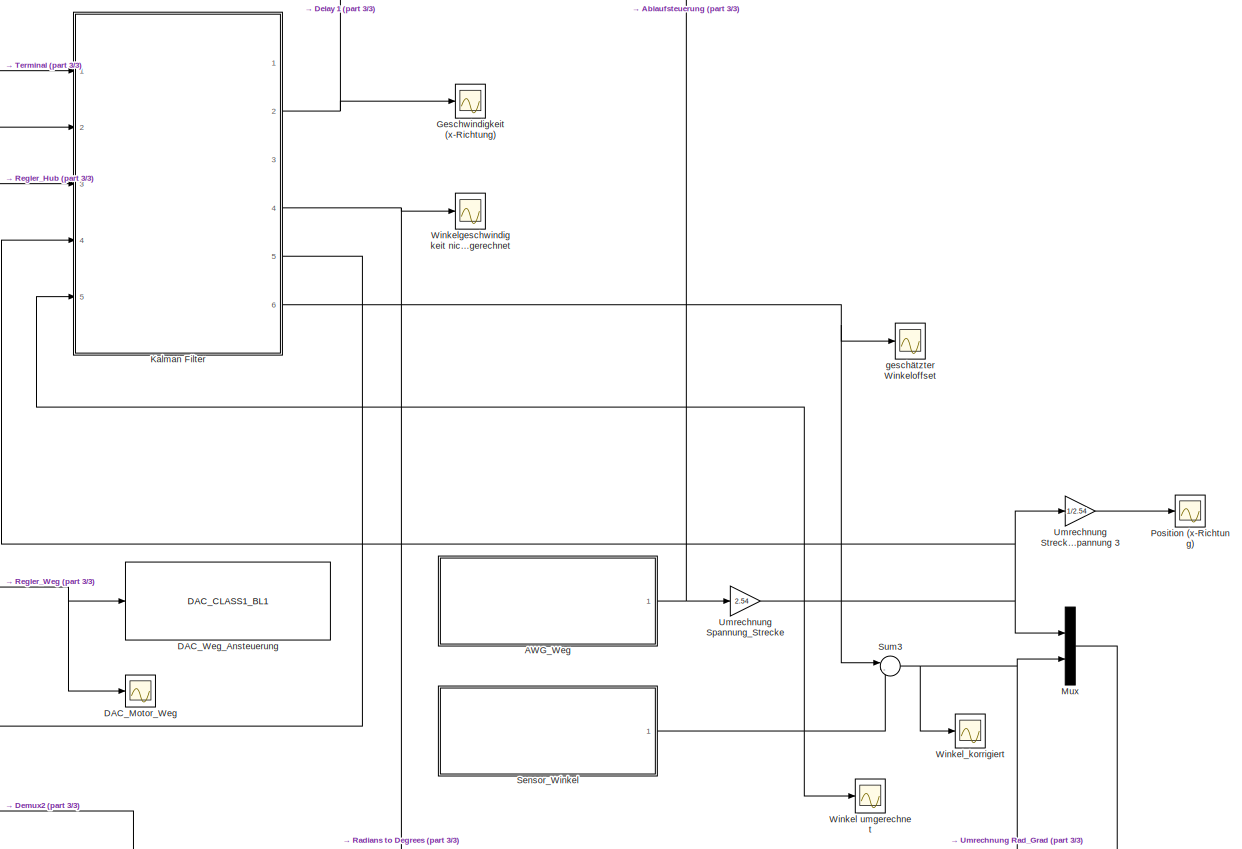
[diagram: root canvas - part 1/3, middle right region]
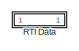
[diagram: root canvas - part 2/3, top left region]
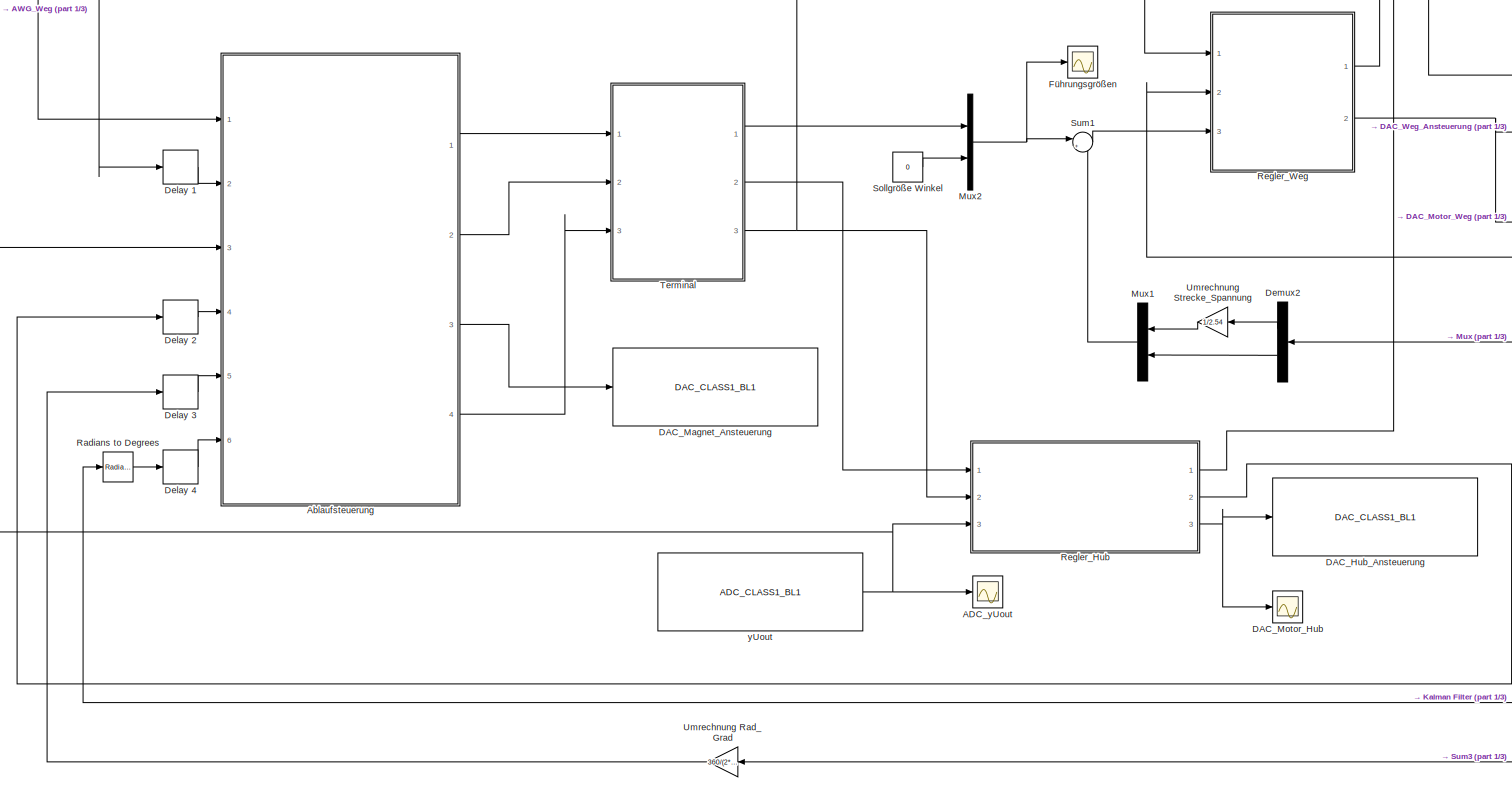
[diagram: root canvas - part 3/3, bottom left region]
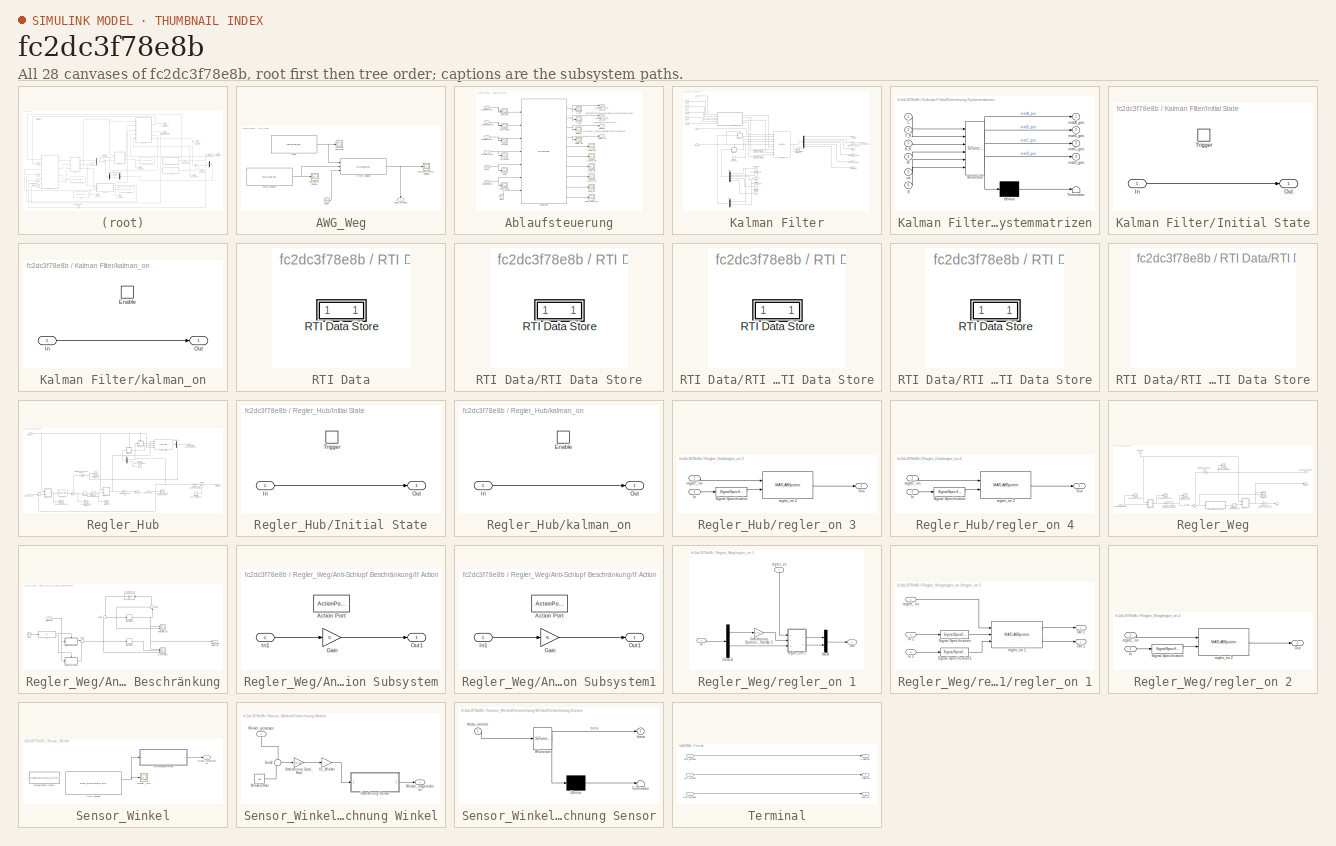
[diagram: thumbnail index - all 28 canvases of the model, root first then tree order]
MODEL slx_fc2dc3f78e8b
KIND model
CONFIG AbsTol = auto
CONFIG EnableMultiTasking = off
CONFIG FixedStep = 0.001
CONFIG MaxStep = auto
CONFIG MinStep = auto
CONFIG PostLoadFcn = , if any(exist('dsrtsu_mdlpostloadfcn', 'file') == [2, 3, 6]), try dsrtsu_mdlpostloadfcn('Execute', bdroot); catch fprintf('Error in PostLoadFcn (dsrtsu_mdlpostloadfcn) for model "%s":\n %s\n', bdroot, lasterr); end, end, \n
CONFIG RelTol = 1e-3
CONFIG SampleTimeConstraint = Unconstrained
CONFIG Solver = ode1
CONFIG SolverName = ode1
CONFIG StartTime = 0.0
CONFIG StopTime = Inf
BLOCK [Scope] ADC_yUout
  NumInputPorts = 1
  Ports = [1]
  ScopeSpecificationString = C++SS(StrPVP('SaveName','ScopeData5'),StrPVP('LimitDataPoints','on'),StrPVP('DataFormat','Array'),StrPVP('Decimation','1'),StrPVP('BlockParamSampleInput','off'),StrPVP('SaveName','ScopeData6'),StrPVP('SaveName','ScopeData20'))
BLOCK [SubSystem] AWG_Weg
  Ports = [0, 1]
  RequestExecContextInheritance = off
  Variant = off
BLOCK [Scope] AWG_Weg/ADC_Taster_Schiene
  NumInputPorts = 1
  Ports = [1]
  ScopeSpecificationString = C++SS(StrPVP('SaveName','ScopeData'),StrPVP('SaveName','ScopeData2'),StrPVP('LimitDataPoints','on'),StrPVP('DataFormat','Array'),StrPVP('Decimation','1'),StrPVP('BlockParamSampleInput','off'),StrPVP('SaveName','ScopeData1'),StrPVP('SaveName','ScopeData10'))
BLOCK [Scope] AWG_Weg/ADC_xUout
  NumInputPorts = 1
  Ports = [1]
  ScopeSpecificationString = C++SS(StrPVP('SaveName','ScopeData4'),StrPVP('LimitDataPoints','on'),StrPVP('DataFormat','Array'),StrPVP('Decimation','1'),StrPVP('BlockParamSampleInput','off'),StrPVP('SaveName','ScopeData1'))
BLOCK [Scope] AWG_Weg/ADC_xUout_offset_abgleich
  NumInputPorts = 1
  Ports = [1]
  ScopeSpecificationString = C++SS(StrPVP('SaveName','ScopeData4'),StrPVP('LimitDataPoints','on'),StrPVP('DataFormat','Array'),StrPVP('Decimation','1'),StrPVP('BlockParamSampleInput','off'),StrPVP('SaveName','ScopeData1'),StrPVP('SaveName','ScopeData17'))
BLOCK [Clock] AWG_Weg/Clock
BLOCK [MATLABSystem] AWG_Weg/Offset Abgleich
  MaskDisplay = disp('offset_abgleich');\nport_label('input',1,'input');\nport_label('input',2,'taster');\nport_label('input',3,'clock');\nport_label('output',1,'output');
  MaskType = offset_abgleich
  Ports = [3, 1]
  SimulateUsing = Code generation
  System = offset_abgleich
BLOCK [Reference] AWG_Weg/Taster_Schiene  REF=rti1202lib_adc_class1/ADC_CLASS1_BL1
  Ports = [0, 1]
  SourceBlock = rti1202lib_adc_class1/ADC_CLASS1_BL1
  SourceType = RTI
BLOCK [Reference] AWG_Weg/xUout  REF=rti1202lib_adc_class1/ADC_CLASS1_BL1
  Ports = [0, 1]
  SourceBlock = rti1202lib_adc_class1/ADC_CLASS1_BL1
  SourceType = RTI
BLOCK [Outport] AWG_Weg/xUout_korrigiert
  IconDisplay = Port number
BLOCK [SubSystem] Ablaufsteuerung
  Ports = [6, 4]
  RequestExecContextInheritance = off
  Variant = off
BLOCK [MATLABSystem] Ablaufsteuerung/AutClassDef
  MaskDisplay = disp('Steuerung_Automatisierung');\nport_label('input',1,'horiz_pos');\nport_label('input',2,'horiz_speed');\nport_label('input',3,'vert_pos');\nport_label('input',4,'vert_speed');\nport_label('input',5,'angle');\nport_label('input',6,'angle_speed');\nport_label('input',7,'Clock');\nport_label('output',1,'horiz_setpoint');\nport_label('output',2,'vert_setpoint');\nport_label('output',3,'magnet_on');\nport_la...<+300ch>
  MaskType = Steuerung_Automatisierung
  Ports = [7, 10]
  SimulateUsing = Code generation
  System = Steuerung_Automatisierung
  add_midpoints = true
  midpoint_height = -1
  param = param
  start_time = 30
BLOCK [Clock] Ablaufsteuerung/Clock
BLOCK [Inport] Ablaufsteuerung/Hubmotor AWG
  IconDisplay = Port number
  OutDataTypeStr = double
  OutMax = 1
  OutMin = 0
  Port = 3
  PortDimensions = 1
  SignalType = real
BLOCK [Inport] Ablaufsteuerung/Hubmotor Speed
  IconDisplay = Port number
  OutDataTypeStr = double
  Port = 4
  SignalType = real
BLOCK [Outport] Ablaufsteuerung/Hubmotor_AWG_ADC_Soll
  IconDisplay = Port number
  Port = 2
BLOCK [Inport] Ablaufsteuerung/Laufkatze AWG
  IconDisplay = Port number
  OutDataTypeStr = double
  OutMax = 1
  OutMin = 0
  PortDimensions = 1
  SignalType = real
BLOCK [Inport] Ablaufsteuerung/Laufkatze Speed
  IconDisplay = Port number
  OutDataTypeStr = double
  Port = 2
  SignalType = real
BLOCK [Outport] Ablaufsteuerung/Laufkatze_AWG_ADC_Soll
  IconDisplay = Port number
BLOCK [Outport] Ablaufsteuerung/Magnet
  IconDisplay = Port number
  Port = 3
BLOCK [Outport] Ablaufsteuerung/Regler_An
  IconDisplay = Port number
  Port = 4
BLOCK [Inport] Ablaufsteuerung/Winkel
  IconDisplay = Port number
  OutDataTypeStr = double
  OutMax = 360
  OutMin = 0
  Port = 5
  PortDimensions = 1
  SignalType = real
BLOCK [Inport] Ablaufsteuerung/Winkel  Speed
  IconDisplay = Port number
  OutDataTypeStr = double
  Port = 6
  SignalType = real
BLOCK [Scope] Ablaufsteuerung/angle
  NumInputPorts = 1
  Ports = [1]
  ScopeSpecificationString = C++SS(StrPVP('SaveName','ScopeData1'),StrPVP('LimitDataPoints','on'),StrPVP('DataFormat','Array'),StrPVP('Decimation','1'),StrPVP('BlockParamSampleInput','off'))
BLOCK [Scope] Ablaufsteuerung/angle_OK
  NumInputPorts = 1
  Ports = [1]
  ScopeSpecificationString = C++SS(StrPVP('SaveName','ScopeData2'),StrPVP('LimitDataPoints','on'),StrPVP('DataFormat','Array'),StrPVP('Decimation','1'),StrPVP('BlockParamSampleInput','off'))
BLOCK [Scope] Ablaufsteuerung/angle_speed
  NumInputPorts = 1
  Ports = [1]
  ScopeSpecificationString = C++SS(StrPVP('SaveName','ScopeData3'),StrPVP('LimitDataPoints','on'),StrPVP('DataFormat','Array'),StrPVP('Decimation','1'),StrPVP('BlockParamSampleInput','off'))
BLOCK [Scope] Ablaufsteuerung/angle_speed_OK
  NumInputPorts = 1
  Ports = [1]
  ScopeSpecificationString = C++SS(StrPVP('SaveName','ScopeData9'),StrPVP('LimitDataPoints','on'),StrPVP('DataFormat','Array'),StrPVP('Decimation','1'),StrPVP('BlockParamSampleInput','off'),StrPVP('SaveName','ScopeData4'))
BLOCK [Scope] Ablaufsteuerung/horiz_pos
  NumInputPorts = 1
  Ports = [1]
  ScopeSpecificationString = C++SS(StrPVP('SaveName','ScopeData5'),StrPVP('LimitDataPoints','on'),StrPVP('DataFormat','Array'),StrPVP('Decimation','1'),StrPVP('BlockParamSampleInput','off'))
BLOCK [Scope] Ablaufsteuerung/horiz_speed
  NumInputPorts = 1
  Ports = [1]
  ScopeSpecificationString = C++SS(StrPVP('SaveName','ScopeData6'),StrPVP('LimitDataPoints','on'),StrPVP('DataFormat','Array'),StrPVP('Decimation','1'),StrPVP('BlockParamSampleInput','off'))
BLOCK [Scope] Ablaufsteuerung/magnet
  NumInputPorts = 1
  Ports = [1]
  ScopeSpecificationString = C++SS(StrPVP('SaveName','ScopeData7'),StrPVP('LimitDataPoints','on'),StrPVP('DataFormat','Array'),StrPVP('Decimation','1'),StrPVP('BlockParamSampleInput','off'))
BLOCK [Scope] Ablaufsteuerung/regler_an
  NumInputPorts = 1
  Ports = [1]
  ScopeSpecificationString = C++SS(StrPVP('SaveName','ScopeData8'),StrPVP('LimitDataPoints','on'),StrPVP('DataFormat','Array'),StrPVP('Decimation','1'),StrPVP('BlockParamSampleInput','off'))
BLOCK [Scope] Ablaufsteuerung/vert_pos
  NumInputPorts = 1
  Ports = [1]
  ScopeSpecificationString = C++SS(StrPVP('SaveName','ScopeData9'),StrPVP('LimitDataPoints','on'),StrPVP('DataFormat','Array'),StrPVP('Decimation','1'),StrPVP('BlockParamSampleInput','off'))
BLOCK [Scope] Ablaufsteuerung/vert_speed
  NumInputPorts = 1
  Ports = [1]
  ScopeSpecificationString = C++SS(StrPVP('SaveName','ScopeData10'),StrPVP('LimitDataPoints','on'),StrPVP('DataFormat','Array'),StrPVP('Decimation','1'),StrPVP('BlockParamSampleInput','off'))
BLOCK [Scope] Ablaufsteuerung/x_pos_OK
  NumInputPorts = 1
  Ports = [1]
  ScopeSpecificationString = C++SS(StrPVP('SaveName','ScopeData11'),StrPVP('LimitDataPoints','on'),StrPVP('DataFormat','Array'),StrPVP('Decimation','1'),StrPVP('BlockParamSampleInput','off'))
BLOCK [Scope] Ablaufsteuerung/x_soll
  NumInputPorts = 1
  Ports = [1]
  ScopeSpecificationString = C++SS(StrPVP('SaveName','ScopeData12'),StrPVP('LimitDataPoints','on'),StrPVP('DataFormat','Array'),StrPVP('Decimation','1'),StrPVP('BlockParamSampleInput','off'))
BLOCK [Scope] Ablaufsteuerung/x_speed_OK
  NumInputPorts = 1
  Ports = [1]
  ScopeSpecificationString = C++SS(StrPVP('SaveName','ScopeData13'),StrPVP('LimitDataPoints','on'),StrPVP('DataFormat','Array'),StrPVP('Decimation','1'),StrPVP('BlockParamSampleInput','off'))
BLOCK [Scope] Ablaufsteuerung/y_pos_OK
  NumInputPorts = 1
  Ports = [1]
  ScopeSpecificationString = C++SS(StrPVP('SaveName','ScopeData14'),StrPVP('LimitDataPoints','on'),StrPVP('DataFormat','Array'),StrPVP('Decimation','1'),StrPVP('BlockParamSampleInput','off'))
BLOCK [Scope] Ablaufsteuerung/y_soll
  NumInputPorts = 1
  Ports = [1]
  ScopeSpecificationString = C++SS(StrPVP('SaveName','ScopeData15'),StrPVP('LimitDataPoints','on'),StrPVP('DataFormat','Array'),StrPVP('Decimation','1'),StrPVP('BlockParamSampleInput','off'))
BLOCK [Scope] Ablaufsteuerung/y_speed_OK
  NumInputPorts = 1
  Ports = [1]
  ScopeSpecificationString = C++SS(StrPVP('SaveName','ScopeData16'),StrPVP('LimitDataPoints','on'),StrPVP('DataFormat','Array'),StrPVP('Decimation','1'),StrPVP('BlockParamSampleInput','off'))
BLOCK [Reference] DAC_Hub_Ansteuerung  REF=rti1202lib_dac_class1/DAC_CLASS1_BL1
  Ports = [1]
  SourceBlock = rti1202lib_dac_class1/DAC_CLASS1_BL1
  SourceType = RTI
BLOCK [Reference] DAC_Magnet_Ansteuerung  REF=rti1202lib_dac_class1/DAC_CLASS1_BL1
  Ports = [1]
  SourceBlock = rti1202lib_dac_class1/DAC_CLASS1_BL1
  SourceType = RTI
BLOCK [Scope] DAC_Motor_Hub
  NumInputPorts = 1
  Ports = [1]
  ScopeSpecificationString = C++SS(StrPVP('SaveName','ScopeData3'),StrPVP('LimitDataPoints','on'),StrPVP('DataFormat','Array'),StrPVP('Decimation','1'),StrPVP('BlockParamSampleInput','off'),StrPVP('SaveName','ScopeData23'))
BLOCK [Scope] DAC_Motor_Weg
  NumInputPorts = 1
  Ports = [1]
  ScopeSpecificationString = C++SS(StrPVP('SaveName','ScopeData3'),StrPVP('LimitDataPoints','on'),StrPVP('DataFormat','Array'),StrPVP('Decimation','1'),StrPVP('BlockParamSampleInput','off'),StrPVP('SaveName','ScopeData1'),StrPVP('SaveName','ScopeData8'))
BLOCK [Reference] DAC_Weg_Ansteuerung  REF=rti1202lib_dac_class1/DAC_CLASS1_BL1
  Ports = [1]
  SourceBlock = rti1202lib_dac_class1/DAC_CLASS1_BL1
  SourceType = RTI
BLOCK [Delay] Delay 1
  DelayLength = 1
  InitialCondition = 0
  InputPortMap = u0
  Ports = [1, 1]
BLOCK [Delay] Delay 2
  DelayLength = 1
  InitialCondition = 0
  InputPortMap = u0
  Ports = [1, 1]
BLOCK [Delay] Delay 3
  DelayLength = 1
  InitialCondition = 0
  InputPortMap = u0
  Ports = [1, 1]
BLOCK [Delay] Delay 4
  DelayLength = 1
  InitialCondition = 0
  InputPortMap = u0
  Ports = [1, 1]
BLOCK [Demux] Demux2
  DisplayOption = bar
  Outputs = 2
  Ports = [1, 2]
BLOCK [Scope] Führungsgrößen
  NumInputPorts = 1
  Ports = [1]
  ScopeSpecificationString = C++SS(StrPVP('SaveName','ScopeData2'),StrPVP('LimitDataPoints','on'),StrPVP('DataFormat','Array'),StrPVP('Decimation','1'),StrPVP('BlockParamSampleInput','off'),StrPVP('SaveName','ScopeData2'))
BLOCK [Scope] Geschwindigkeit (x-Richtung)
  NumInputPorts = 1
  Ports = [1]
  ScopeSpecificationString = C++SS(StrPVP('SaveName','ScopeData4'),StrPVP('LimitDataPoints','on'),StrPVP('DataFormat','Array'),StrPVP('Decimation','1'),StrPVP('BlockParamSampleInput','off'),StrPVP('SaveName','ScopeData4'))
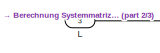
[diagram: Kalman Filter - part 1/3, top left region]
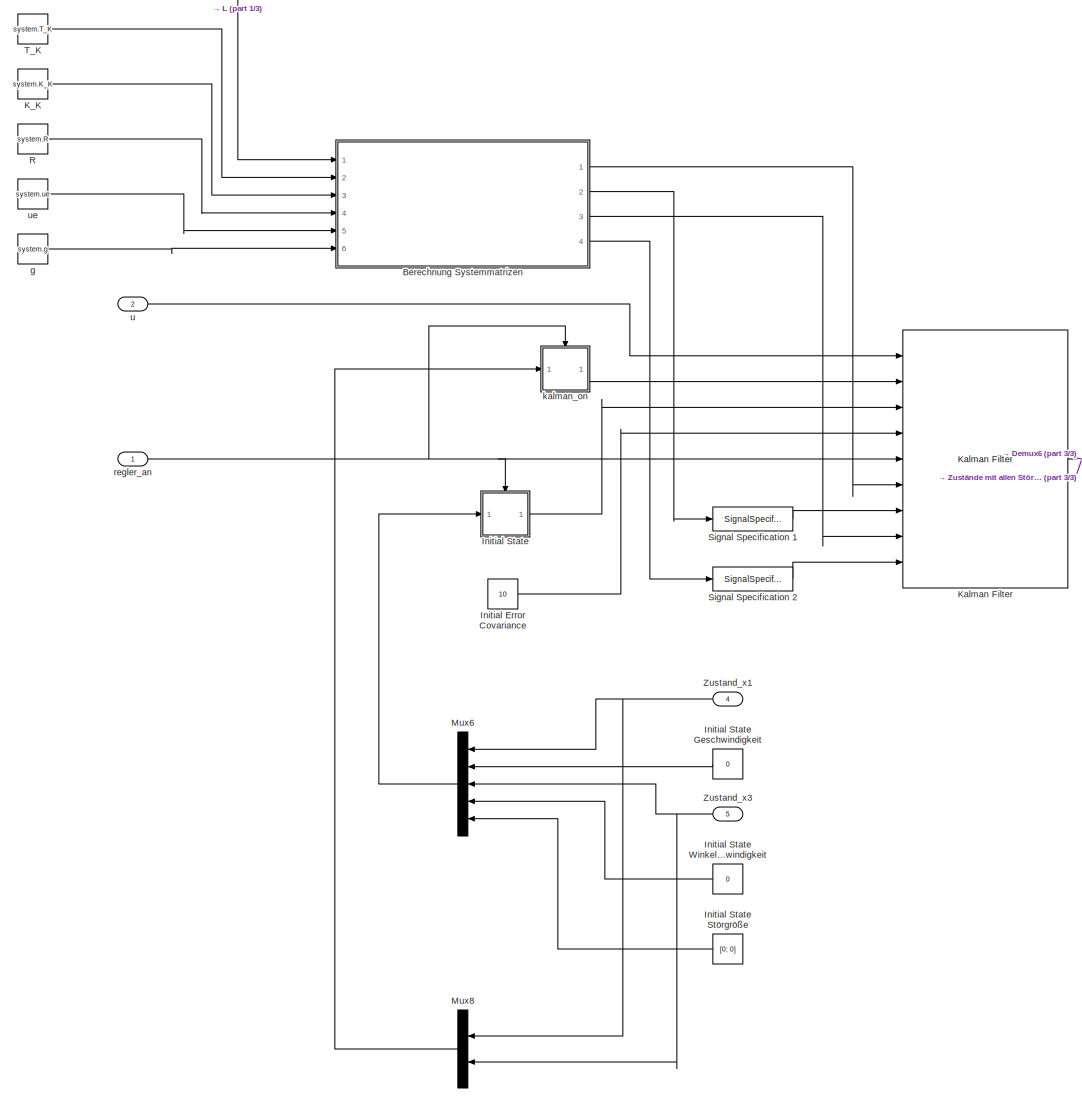
[diagram: Kalman Filter - part 2/3, left side, full height]
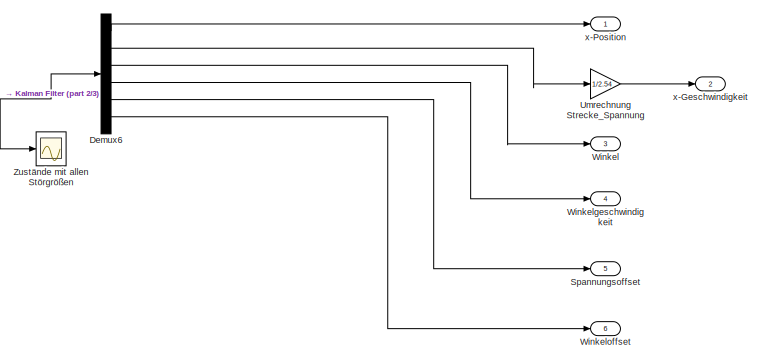
[diagram: Kalman Filter - part 3/3, middle right region]
BLOCK [SubSystem] Kalman Filter
  Ports = [5, 6]
  RequestExecContextInheritance = off
  Variant = off
BLOCK [SubSystem] Kalman Filter/Berechnung Systemmatrizen
  ErrorFcn = Stateflow.Translate.translate
  PermitHierarchicalResolution = ExplicitOnly
  Ports = [6, 4]
  RequestExecContextInheritance = off
  SFBlockType = MATLAB Function
  TreatAsAtomicUnit = on
  Variant = off
BLOCK [Demux] Kalman Filter/Berechnung Systemmatrizen/ Demux 
  Outputs = 1
  Ports = [1, 1]
BLOCK [S-Function] Kalman Filter/Berechnung Systemmatrizen/ SFunction 
  EnableBusSupport = on
  FunctionName = sf_sfun
  PortCounts = [6 5]
  Ports = [6, 5]
  SFcnIsStateOwnerBlock = off
  SFunctionDeploymentMode = off
  Tag = Stateflow S-Function gesamtkonzept_robuster_regler_polbvg 3
BLOCK [Terminator] Kalman Filter/Berechnung Systemmatrizen/ Terminator 
BLOCK [Inport] Kalman Filter/Berechnung Systemmatrizen/K_K
  IconDisplay = Port number
  Port = 3
BLOCK [Inport] Kalman Filter/Berechnung Systemmatrizen/L
  IconDisplay = Port number
BLOCK [Inport] Kalman Filter/Berechnung Systemmatrizen/R
  IconDisplay = Port number
  Port = 4
BLOCK [Inport] Kalman Filter/Berechnung Systemmatrizen/T_K
  IconDisplay = Port number
  Port = 2
BLOCK [Inport] Kalman Filter/Berechnung Systemmatrizen/g
  IconDisplay = Port number
  Port = 6
BLOCK [Outport] Kalman Filter/Berechnung Systemmatrizen/matA_ges
  IconDisplay = Port number
BLOCK [Outport] Kalman Filter/Berechnung Systemmatrizen/matB_ges
  IconDisplay = Port number
  Port = 2
BLOCK [Outport] Kalman Filter/Berechnung Systemmatrizen/matC_ges
  IconDisplay = Port number
  Port = 3
BLOCK [Outport] Kalman Filter/Berechnung Systemmatrizen/matD_ges
  IconDisplay = Port number
  Port = 4
BLOCK [Inport] Kalman Filter/Berechnung Systemmatrizen/ue
  IconDisplay = Port number
  Port = 5
BLOCK [Demux] Kalman Filter/Demux6
  DisplayOption = bar
  Outputs = 6
  Ports = [1, 6]
BLOCK [Constant] Kalman Filter/Initial Error Covariance
  SampleTime = -1
  Value = 10
BLOCK [SubSystem] Kalman Filter/Initial State
  Ports = [1, 1, 0, 1]
  RequestExecContextInheritance = off
  TreatAsAtomicUnit = on
  Variant = off
BLOCK [Constant] Kalman Filter/Initial State Geschwindigkeit
  Value = 0
  VectorParams1D = off
BLOCK [Constant] Kalman Filter/Initial State Störgröße
  Value = [0; 0]
  VectorParams1D = off
BLOCK [Constant] Kalman Filter/Initial State Winkelgeschwindigkeit
  Value = 0
  VectorParams1D = off
BLOCK [Inport] Kalman Filter/Initial State/In
  IconDisplay = Port number
BLOCK [Outport] Kalman Filter/Initial State/Out
  IconDisplay = Port number
BLOCK [TriggerPort] Kalman Filter/Initial State/Trigger
  Ports = []
  StatesWhenEnabling = held
  VariantControl = Variant
BLOCK [Constant] Kalman Filter/K_K
  Value = system.K_K
BLOCK [Reference] Kalman Filter/Kalman Filter  REF=ctrlSharedLib/Kalman Filter
  Ports = [9, 1]
  SourceBlock = ctrlSharedLib/Kalman Filter
  SourceType = ctrlKalmanFilter
BLOCK [Inport] Kalman Filter/L
  IconDisplay = Port number
  Port = 3
BLOCK [Mux] Kalman Filter/Mux6
  DisplayOption = bar
  Inputs = 5
  Ports = [5, 1]
BLOCK [Mux] Kalman Filter/Mux8
  DisplayOption = bar
  Inputs = 2
  Ports = [2, 1]
BLOCK [Constant] Kalman Filter/R
  Value = system.R
BLOCK [SignalSpecification] Kalman Filter/Signal Specification 1
  Dimensions = [6 1]
BLOCK [SignalSpecification] Kalman Filter/Signal Specification 2
  Dimensions = [2 1]
BLOCK [Outport] Kalman Filter/Spannungsoffset
  IconDisplay = Port number
  Port = 5
BLOCK [Constant] Kalman Filter/T_K
  Value = system.T_K
BLOCK [Gain] Kalman Filter/Umrechnung Strecke_Spannung
  Gain = 1/2.54
  OutDataTypeStr = Inherit: Inherit via internal rule
  ParamDataTypeStr = Inherit: Inherit via internal rule
  SaturateOnIntegerOverflow = off
BLOCK [Outport] Kalman Filter/Winkel
  IconDisplay = Port number
  Port = 3
BLOCK [Outport] Kalman Filter/Winkelgeschwindigkeit
  IconDisplay = Port number
  Port = 4
BLOCK [Outport] Kalman Filter/Winkeloffset
  IconDisplay = Port number
  Port = 6
BLOCK [Inport] Kalman Filter/Zustand_x1
  IconDisplay = Port number
  Port = 4
BLOCK [Inport] Kalman Filter/Zustand_x3
  IconDisplay = Port number
  Port = 5
BLOCK [Scope] Kalman Filter/Zustände mit allen Störgrößen
  NumInputPorts = 1
  Ports = [1]
  ScopeSpecificationString = Simulink.scopes.TimeScopeBlockCfg('CurrentConfiguration', extmgr.ConfigurationSet(extmgr.Configuration('Core','General UI',true),extmgr.Configuration('Core','Source UI',true),extmgr.Configuration('Sources','WiredSimulink',true,'DataLoggingVariableName','ScopeData1'),extmgr.Configuration('Visuals','Time Domain',true,'SerializedDisplays',{struct('MinYLimReal','-0.84313','MaxYLimReal','3.02828','YLab...<+1537ch>
BLOCK [Constant] Kalman Filter/g
  Value = system.g
BLOCK [SubSystem] Kalman Filter/kalman_on
  Ports = [1, 1, 1]
  RequestExecContextInheritance = off
  TreatAsAtomicUnit = on
  Variant = off
BLOCK [EnablePort] Kalman Filter/kalman_on/Enable
  Ports = []
BLOCK [Inport] Kalman Filter/kalman_on/In
  IconDisplay = Port number
BLOCK [Outport] Kalman Filter/kalman_on/Out
  IconDisplay = Port number
BLOCK [Inport] Kalman Filter/regler_an
  IconDisplay = Port number
BLOCK [Inport] Kalman Filter/u
  IconDisplay = Port number
  Port = 2
BLOCK [Constant] Kalman Filter/ue
  Value = system.ue
BLOCK [Outport] Kalman Filter/x-Geschwindigkeit
  IconDisplay = Port number
  Port = 2
BLOCK [Outport] Kalman Filter/x-Position
  IconDisplay = Port number
BLOCK [Mux] Mux
  DisplayOption = bar
  Inputs = 2
  Ports = [2, 1]
BLOCK [Mux] Mux1
  DisplayOption = bar
  Inputs = 2
  Ports = [2, 1]
BLOCK [Mux] Mux2
  DisplayOption = bar
  Inputs = 2
  Ports = [2, 1]
BLOCK [Scope] Position (x-Richtung)
  NumInputPorts = 1
  Ports = [1]
  ScopeSpecificationString = C++SS(StrPVP('SaveName','ScopeData5'),StrPVP('LimitDataPoints','on'),StrPVP('DataFormat','Array'),StrPVP('Decimation','1'),StrPVP('BlockParamSampleInput','off'),StrPVP('SaveName','ScopeData5'))
BLOCK [SubSystem] RTI Data
  CopyFcn = if exist('rtidc'), try,  rtidc('DataHostBlockClbCopy', gcbh); catch, disp(['Warning: ''CopyFcn'' for RTI Data block failed: ' lasterr]); end, end,
  DeleteFcn = if exist('rtidc'), try,  rtidc('DataHostBlockClbDelete', gcbh); catch, disp(['Warning: ''DeleteFcn'' for RTI Data block failed: ' lasterr]); end, end,
  LoadFcn = if exist('rtidc'), try,  rtidc('DataHostBlockClbLoad', gcbh); catch, disp(['Warning: ''LoadFcn'' for RTI Data block failed: ' lasterr]); end, end,
  ModelCloseFcn = if exist('rtidc'), try,  rtidc('DataHostBlockClbModelClose', gcbh); catch, disp(['Warning: ''ModelCloseFcn'' for RTI Data block failed: ' lasterr]); end, end,
  NameChangeFcn = if exist('rtidc'), try,  rtidc('DataHostBlockClbNameChange', gcbh); catch, disp(['Warning: ''NameChangeFcn'' for RTI Data block failed: ' lasterr]); end, end,
  Ports = []
  PostSaveFcn = if exist('rtidc'), try,  rtidc('DataHostBlockClbPostSave', gcbh); catch, disp(['Warning: ''PostSaveFcn'' for RTI Data block failed: ' lasterr]); end, end,
  PreSaveFcn = if exist('rtidc'), try,  rtidc('DataHostBlockClbPreSave', gcbh); catch, disp(['Warning: ''PreSaveFcn'' for RTI Data block failed: ' lasterr]); end, end,
  RequestExecContextInheritance = off
  Tag = struct('RTIDataServer',struct('RTIDataServerVs','2','RTIModelDescription','struct(''main'',''test_regler_polbvg_aktoren_sensoren_ansprechen'',''sub'','''',''isMp'',0)'))
  Variant = off
BLOCK [SubSystem] RTI Data/RTI Data Store
  Ports = []
  RequestExecContextInheritance = off
  Tag = struct('private',struct('version',struct('dsVer',uint32(2),'dsVerCreation',uint32(2),'RTI',struct('ver','7.7','type','RTI1202')),'access',struct('type','Model','isPerm',1,'created',['24-Nov-2020 10:16:32'],'modified',['09-Feb-2021 16:18:32'],'location','')),'public',struct('main',struct('data',[]),'sub',struct('name',{{'test_regler_polbvg_aktoren_sensoren_ansprechen'}},'data',{{struct('TH',struct(...<+923ch>
  Variant = off
BLOCK [SubSystem] RTI Data/RTI Data Store/RTI Data Store
  Ports = []
  RequestExecContextInheritance = off
  Variant = off
BLOCK [SubSystem] RTI Data/RTI Data Store/RTI Data Store/RTI Data Store
  Ports = []
  RequestExecContextInheritance = off
  Variant = off
BLOCK [SubSystem] RTI Data/RTI Data Store/RTI Data Store/RTI Data Store/RTI Data Store
  Ports = []
  RequestExecContextInheritance = off
  Variant = off
BLOCK [Reference] Radians to Degrees  REF=simulink_extras/Transformations/Radians
to Degrees
  Ports = [1, 1]
  SourceBlock = simulink_extras/Transformations/Radians\nto Degrees
  SourceType = RadiansToDegrees
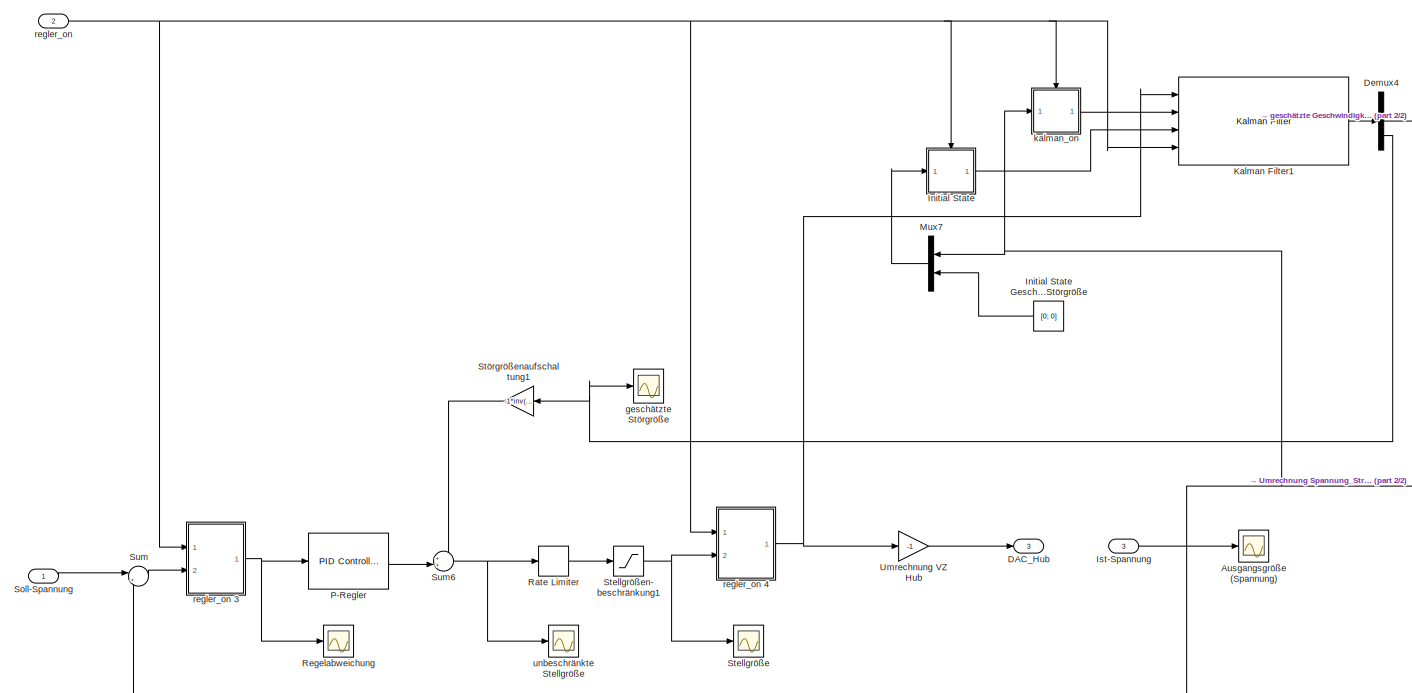
[diagram: Regler_Hub - part 1/2, most of the canvas]
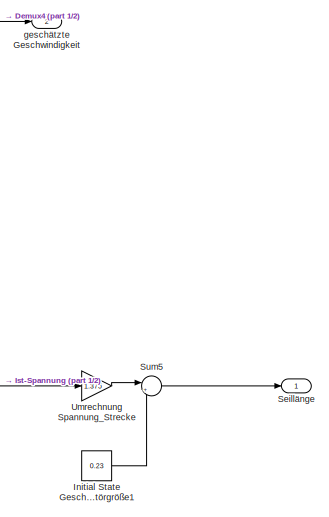
[diagram: Regler_Hub - part 2/2, middle right region]
BLOCK [SubSystem] Regler_Hub
  Ports = [3, 3]
  RequestExecContextInheritance = off
  Variant = off
BLOCK [Scope] Regler_Hub/Ausgangsgröße (Spannung)
  NumInputPorts = 1
  Ports = [1]
  ScopeSpecificationString = C++SS(StrPVP('SaveName','ScopeData1'),StrPVP('LimitDataPoints','on'),StrPVP('DataFormat','Array'),StrPVP('Decimation','1'),StrPVP('BlockParamSampleInput','off'),StrPVP('SaveName','ScopeData21'))
BLOCK [Outport] Regler_Hub/DAC_Hub
  IconDisplay = Port number
  Port = 3
BLOCK [Demux] Regler_Hub/Demux4
  DisplayOption = bar
  Outputs = 3
  Ports = [1, 3]
BLOCK [SubSystem] Regler_Hub/Initial State
  Ports = [1, 1, 0, 1]
  RequestExecContextInheritance = off
  TreatAsAtomicUnit = on
  Variant = off
BLOCK [Constant] Regler_Hub/Initial State Geschwindigkeit, Störgröße
  Value = [0; 0]
  VectorParams1D = off
BLOCK [Constant] Regler_Hub/Initial State Geschwindigkeit, Störgröße1
  Value = 0.23
  VectorParams1D = off
BLOCK [Inport] Regler_Hub/Initial State/In
  IconDisplay = Port number
BLOCK [Outport] Regler_Hub/Initial State/Out
  IconDisplay = Port number
BLOCK [TriggerPort] Regler_Hub/Initial State/Trigger
  Ports = []
  StatesWhenEnabling = held
  VariantControl = Variant
BLOCK [Inport] Regler_Hub/Ist-Spannung
  IconDisplay = Port number
  Port = 3
BLOCK [Reference] Regler_Hub/Kalman Filter1  REF=ctrlSharedLib/Kalman Filter
  Ports = [4, 1]
  SourceBlock = ctrlSharedLib/Kalman Filter
  SourceType = ctrlKalmanFilter
BLOCK [Mux] Regler_Hub/Mux7
  DisplayOption = bar
  Inputs = 2
  Ports = [2, 1]
BLOCK [Reference] Regler_Hub/P-Regler  REF=simulink/Continuous/PID Controller
  Ports = [1, 1]
  SourceBlock = simulink/Continuous/PID Controller
  SourceType = PID 1dof
BLOCK [RateLimiter] Regler_Hub/Rate Limiter
  FallingSlewLimit = -0.23024
  RisingSlewLimit = 0.23024
  SampleTimeMode = inherited
BLOCK [Scope] Regler_Hub/Regelabweichung
  NumInputPorts = 1
  Ports = [1]
  ScopeSpecificationString = C++SS(StrPVP('SaveName','ScopeData2'),StrPVP('LimitDataPoints','on'),StrPVP('DataFormat','Array'),StrPVP('Decimation','1'),StrPVP('BlockParamSampleInput','off'),StrPVP('SaveName','ScopeData22'))
BLOCK [Outport] Regler_Hub/Seillänge
  IconDisplay = Port number
BLOCK [Inport] Regler_Hub/Soll-Spannung
  IconDisplay = Port number
BLOCK [Scope] Regler_Hub/Stellgröße
  NumInputPorts = 1
  Ports = [1]
  ScopeSpecificationString = C++SS(StrPVP('SaveName','ScopeData3'),StrPVP('LimitDataPoints','on'),StrPVP('DataFormat','Array'),StrPVP('Decimation','1'),StrPVP('BlockParamSampleInput','off'),StrPVP('SaveName','ScopeData24'))
BLOCK [Saturate] Regler_Hub/Stellgrößen- beschränkung1
  InputPortMap = u0
  LowerLimit = -1
  Ports = [1, 1]
  UpperLimit = 1
BLOCK [Gain] Regler_Hub/Störgrößenaufschaltung1
  Gain = -1*inv(matB_hub'*matB_hub)*matB_hub'*matE_hub
  Multiplication = Matrix(K*u)
  OutDataTypeStr = Inherit: Inherit via internal rule
  ParamDataTypeStr = Inherit: Inherit via internal rule
  SaturateOnIntegerOverflow = off
BLOCK [Sum] Regler_Hub/Sum
  IconShape = round
  InputSameDT = off
  Inputs = |+-
  OutDataTypeStr = Inherit: Inherit via internal rule
  Ports = [2, 1]
  SaturateOnIntegerOverflow = off
BLOCK [Sum] Regler_Hub/Sum5
  IconShape = round
  InputSameDT = off
  Inputs = |++
  OutDataTypeStr = Inherit: Inherit via internal rule
  Ports = [2, 1]
  SaturateOnIntegerOverflow = off
BLOCK [Sum] Regler_Hub/Sum6
  IconShape = round
  InputSameDT = off
  Inputs = ++|
  OutDataTypeStr = Inherit: Inherit via internal rule
  Ports = [2, 1]
  SaturateOnIntegerOverflow = off
BLOCK [Gain] Regler_Hub/Umrechnung Spannung_Strecke
  Gain = 1.375
  OutDataTypeStr = Inherit: Inherit via internal rule
  ParamDataTypeStr = Inherit: Inherit via internal rule
  SaturateOnIntegerOverflow = off
BLOCK [Gain] Regler_Hub/Umrechnung VZ Hub
  Gain = -1
  OutDataTypeStr = Inherit: Inherit via internal rule
  ParamDataTypeStr = Inherit: Inherit via internal rule
  SaturateOnIntegerOverflow = off
BLOCK [Outport] Regler_Hub/geschätzte Geschwindigkeit
  IconDisplay = Port number
  Port = 2
BLOCK [Scope] Regler_Hub/geschätzte Störgröße
  NumInputPorts = 1
  Ports = [1]
  ScopeSpecificationString = C++SS(StrPVP('SaveName','ScopeData4'),StrPVP('LimitDataPoints','on'),StrPVP('DataFormat','Array'),StrPVP('Decimation','1'),StrPVP('BlockParamSampleInput','off'),StrPVP('SaveName','ScopeData25'))
BLOCK [SubSystem] Regler_Hub/kalman_on
  Ports = [1, 1, 1]
  RequestExecContextInheritance = off
  TreatAsAtomicUnit = on
  Variant = off
BLOCK [EnablePort] Regler_Hub/kalman_on/Enable
  Ports = []
BLOCK [Inport] Regler_Hub/kalman_on/In
  IconDisplay = Port number
BLOCK [Outport] Regler_Hub/kalman_on/Out
  IconDisplay = Port number
BLOCK [Inport] Regler_Hub/regler_on
  IconDisplay = Port number
  Port = 2
BLOCK [SubSystem] Regler_Hub/regler_on 3
  Ports = [2, 1]
  RequestExecContextInheritance = off
  Variant = off
BLOCK [Inport] Regler_Hub/regler_on 3/In
  IconDisplay = Port number
  Port = 2
BLOCK [Outport] Regler_Hub/regler_on 3/Out
  IconDisplay = Port number
BLOCK [SignalSpecification] Regler_Hub/regler_on 3/Signal Specification
  Dimensions = 1
BLOCK [Inport] Regler_Hub/regler_on 3/regler_ on
  IconDisplay = Port number
BLOCK [MATLABSystem] Regler_Hub/regler_on 3/regler_on 2
  MaskDisplay = disp('regler_switch_1');\nport_label('input',1,'regler_on');\nport_label('input',2,'input');\nport_label('output',1,'y');
  MaskType = regler_switch_1
  Ports = [2, 1]
  SimulateUsing = Code generation
  System = regler_switch_1
BLOCK [SubSystem] Regler_Hub/regler_on 4
  Ports = [2, 1]
  RequestExecContextInheritance = off
  Variant = off
BLOCK [Inport] Regler_Hub/regler_on 4/In
  IconDisplay = Port number
  Port = 2
BLOCK [Outport] Regler_Hub/regler_on 4/Out
  IconDisplay = Port number
BLOCK [SignalSpecification] Regler_Hub/regler_on 4/Signal Specification
  Dimensions = 1
BLOCK [Inport] Regler_Hub/regler_on 4/regler_ on
  IconDisplay = Port number
BLOCK [MATLABSystem] Regler_Hub/regler_on 4/regler_on 2
  MaskDisplay = disp('regler_switch_1');\nport_label('input',1,'regler_on');\nport_label('input',2,'input');\nport_label('output',1,'y');
  MaskType = regler_switch_1
  Ports = [2, 1]
  SimulateUsing = Code generation
  System = regler_switch_1
BLOCK [Scope] Regler_Hub/unbeschränkte Stellgröße
  NumInputPorts = 1
  Ports = [1]
  ScopeSpecificationString = C++SS(StrPVP('SaveName','ScopeData5'),StrPVP('LimitDataPoints','on'),StrPVP('DataFormat','Array'),StrPVP('Decimation','1'),StrPVP('BlockParamSampleInput','off'),StrPVP('SaveName','ScopeData26'))
BLOCK [SubSystem] Regler_Weg
  Ports = [3, 2]
  RequestExecContextInheritance = off
  Variant = off
BLOCK [SubSystem] Regler_Weg/Anti-Schlupf Beschränkung
  Ports = [1, 1]
  RequestExecContextInheritance = off
  Variant = off
BLOCK [Clock] Regler_Weg/Anti-Schlupf Beschränkung/Clock
BLOCK [If] Regler_Weg/Anti-Schlupf Beschränkung/If
  IfExpression = u1 < 0.01
  Ports = [1, 2]
BLOCK [SubSystem] Regler_Weg/Anti-Schlupf Beschränkung/If Action Subsystem
  Ports = [1, 1, 0, 0, 0, 0, 0, 1]
  RequestExecContextInheritance = off
  TreatAsAtomicUnit = on
  Variant = off
BLOCK [ActionPort] Regler_Weg/Anti-Schlupf Beschränkung/If Action Subsystem/Action Port
  ActionType = then
BLOCK [Gain] Regler_Weg/Anti-Schlupf Beschränkung/If Action Subsystem/Gain
  Gain = 0
  OutDataTypeStr = Inherit: Inherit via internal rule
  ParamDataTypeStr = Inherit: Inherit via internal rule
  SaturateOnIntegerOverflow = off
BLOCK [Inport] Regler_Weg/Anti-Schlupf Beschränkung/If Action Subsystem/In1
  IconDisplay = Port number
BLOCK [Outport] Regler_Weg/Anti-Schlupf Beschränkung/If Action Subsystem/Out1
  IconDisplay = Port number
BLOCK [SubSystem] Regler_Weg/Anti-Schlupf Beschränkung/If Action Subsystem1
  Ports = [1, 1, 0, 0, 0, 0, 0, 1]
  RequestExecContextInheritance = off
  TreatAsAtomicUnit = on
  Variant = off
BLOCK [ActionPort] Regler_Weg/Anti-Schlupf Beschränkung/If Action Subsystem1/Action Port
  ActionType = else
BLOCK [Gain] Regler_Weg/Anti-Schlupf Beschränkung/If Action Subsystem1/Gain
  OutDataTypeStr = Inherit: Inherit via internal rule
  ParamDataTypeStr = Inherit: Inherit via internal rule
  SaturateOnIntegerOverflow = off
BLOCK [Inport] Regler_Weg/Anti-Schlupf Beschränkung/If Action Subsystem1/In1
  IconDisplay = Port number
BLOCK [Outport] Regler_Weg/Anti-Schlupf Beschränkung/If Action Subsystem1/Out1
  IconDisplay = Port number
BLOCK [Scope] Regler_Weg/Anti-Schlupf Beschränkung/RL_Vergleich
  NumInputPorts = 3
  Ports = [3]
  ScopeSpecificationString = Simulink.scopes.TimeScopeBlockCfg('CurrentConfiguration', extmgr.ConfigurationSet(extmgr.Configuration('Core','General UI',true),extmgr.Configuration('Core','Source UI',true),extmgr.Configuration('Sources','WiredSimulink',true,'DataLoggingVariableName','ScopeData2'),extmgr.Configuration('Visuals','Time Domain',true,'SerializedDisplays',{struct('MinYLimReal','-510.99726','MaxYLimReal','97.01303','Y...<+1490ch>
BLOCK [RateLimiter] Regler_Weg/Anti-Schlupf Beschränkung/Rate Limiter 1
  FallingSlewLimit = -9.57
  RisingSlewLimit = 9.57
  SampleTimeMode = inherited
BLOCK [RateLimiter] Regler_Weg/Anti-Schlupf Beschränkung/Rate Limiter 2
  FallingSlewLimit = -9.57
  RisingSlewLimit = 9.57
  SampleTimeMode = inherited
BLOCK [Scope] Regler_Weg/Anti-Schlupf Beschränkung/Rate Limiter_diff
  NumInputPorts = 2
  Ports = [2]
  ScopeSpecificationString = Simulink.scopes.TimeScopeBlockCfg('CurrentConfiguration', extmgr.ConfigurationSet(extmgr.Configuration('Core','General UI',true),extmgr.Configuration('Core','Source UI',true),extmgr.Configuration('Sources','WiredSimulink',true,'DataLoggingVariableName','ScopeData1'),extmgr.Configuration('Visuals','Time Domain',true,'SerializedDisplays',{struct('MinYLimReal','-24.99839','MaxYLimReal','29.44327','YL...<+1434ch>
BLOCK [Inport] Regler_Weg/Anti-Schlupf Beschränkung/Stellgröße
  IconDisplay = Port number
BLOCK [Sum] Regler_Weg/Anti-Schlupf Beschränkung/Sum1
  IconShape = round
  InputSameDT = off
  Inputs = -+|
  OutDataTypeStr = Inherit: Inherit via internal rule
  Ports = [2, 1]
  SaturateOnIntegerOverflow = off
BLOCK [Sum] Regler_Weg/Anti-Schlupf Beschränkung/Sum2
  IconShape = round
  InputSameDT = off
  Inputs = +|+
  OutDataTypeStr = Inherit: Inherit via internal rule
  Ports = [2, 1]
  SaturateOnIntegerOverflow = off
BLOCK [Sum] Regler_Weg/Anti-Schlupf Beschränkung/Sum8
  IconShape = round
  InputSameDT = off
  Inputs = |++
  OutDataTypeStr = Inherit: Inherit via internal rule
  Ports = [2, 1]
  SaturateOnIntegerOverflow = off
BLOCK [TransferFcn] Regler_Weg/Anti-Schlupf Beschränkung/Transfer Fcn2
  Denominator = [2 1]
  Numerator = [2]
BLOCK [Outport] Regler_Weg/Anti-Schlupf Beschränkung/begrenzte Stellgröße
  IconDisplay = Port number
BLOCK [StateSpace] Regler_Weg/Dynamischer Regler Polbereichsvorgabe
  A = A_D
  B = -B_D
  C = -C_D
  D = D_D
  Ports = [1, 1]
  X0 = 0
BLOCK [Outport] Regler_Weg/Out2
  IconDisplay = Port number
  Port = 2
BLOCK [Inport] Regler_Weg/Regelabweichung
  IconDisplay = Port number
  Port = 3
BLOCK [Scope] Regler_Weg/Regelabweichung 1
  NumInputPorts = 1
  Ports = [1]
  ScopeSpecificationString = C++SS(StrPVP('SaveName','ScopeData6'),StrPVP('LimitDataPoints','on'),StrPVP('DataFormat','Array'),StrPVP('Decimation','1'),StrPVP('BlockParamSampleInput','off'),StrPVP('SaveName','ScopeData6'))
BLOCK [Scope] Regler_Weg/Regelabweichung 2
  NumInputPorts = 1
  Ports = [1]
  ScopeSpecificationString = C++SS(StrPVP('SaveName','ScopeData7'),StrPVP('LimitDataPoints','on'),StrPVP('DataFormat','Array'),StrPVP('Decimation','1'),StrPVP('BlockParamSampleInput','off'),StrPVP('SaveName','ScopeData7'))
BLOCK [Inport] Regler_Weg/Spannungsoffset
  IconDisplay = Port number
  Port = 2
BLOCK [Outport] Regler_Weg/Stellgröße
  IconDisplay = Port number
BLOCK [Scope] Regler_Weg/Stellgröße ohne Begrenzung
  NumInputPorts = 1
  Ports = [1]
  ScopeSpecificationString = C++SS(StrPVP('SaveName','ScopeData8'),StrPVP('LimitDataPoints','on'),StrPVP('DataFormat','Array'),StrPVP('Decimation','1'),StrPVP('BlockParamSampleInput','off'),StrPVP('SaveName','ScopeData9'))
BLOCK [Saturate] Regler_Weg/Stellgrößen- beschränkung
  InputPortMap = u0
  LowerLimit = -75
  Ports = [1, 1]
  UpperLimit = 75
BLOCK [Gain] Regler_Weg/Störgrößenaufschaltung
  Gain = -1*inv(matB'*matB)*matB'*matE
  Multiplication = Matrix(K*u)
  OutDataTypeStr = Inherit: Inherit via internal rule
  ParamDataTypeStr = Inherit: Inherit via internal rule
  SaturateOnIntegerOverflow = off
BLOCK [Sum] Regler_Weg/Sum4
  IconShape = round
  InputSameDT = off
  Inputs = ++|
  OutDataTypeStr = Inherit: Inherit via internal rule
  Ports = [2, 1]
  SaturateOnIntegerOverflow = off
BLOCK [Gain] Regler_Weg/Umrechnung Drehzahl_Spannung
  Gain = 1/75
  OutDataTypeStr = Inherit: Inherit via internal rule
  ParamDataTypeStr = Inherit: Inherit via internal rule
  SaturateOnIntegerOverflow = off
BLOCK [Scope] Regler_Weg/geschätzter Spannungsoffset
  NumInputPorts = 1
  Ports = [1]
  ScopeSpecificationString = C++SS(StrPVP('SaveName','ScopeData13'),StrPVP('LimitDataPoints','on'),StrPVP('DataFormat','Array'),StrPVP('Decimation','1'),StrPVP('BlockParamSampleInput','off'),StrPVP('SaveName','ScopeData17'))
BLOCK [Inport] Regler_Weg/regler_on
  IconDisplay = Port number
BLOCK [SubSystem] Regler_Weg/regler_on 1
  Ports = [2, 1]
  RequestExecContextInheritance = off
  Variant = off
BLOCK [Demux] Regler_Weg/regler_on 1/Demux1
  DisplayOption = bar
  Outputs = 2
  Ports = [1, 2]
BLOCK [Inport] Regler_Weg/regler_on 1/In
  IconDisplay = Port number
  Port = 2
BLOCK [Mux] Regler_Weg/regler_on 1/Mux4
  DisplayOption = bar
  Inputs = 2
  Ports = [2, 1]
BLOCK [Outport] Regler_Weg/regler_on 1/Out
  IconDisplay = Port number
BLOCK [Gain] Regler_Weg/regler_on 1/Umrechnung Spannung_Strecke 2
  Gain = 2.54
  OutDataTypeStr = Inherit: Inherit via internal rule
  ParamDataTypeStr = Inherit: Inherit via internal rule
  SaturateOnIntegerOverflow = off
BLOCK [Inport] Regler_Weg/regler_on 1/regler_on
  IconDisplay = Port number
BLOCK [SubSystem] Regler_Weg/regler_on 1/regler_on 1
  Ports = [3, 2]
  RequestExecContextInheritance = off
  Variant = off
BLOCK [Inport] Regler_Weg/regler_on 1/regler_on 1/In 1
  IconDisplay = Port number
  Port = 2
BLOCK [Inport] Regler_Weg/regler_on 1/regler_on 1/In 2
  IconDisplay = Port number
  Port = 3
BLOCK [Outport] Regler_Weg/regler_on 1/regler_on 1/Out 1
  IconDisplay = Port number
BLOCK [Outport] Regler_Weg/regler_on 1/regler_on 1/Out 2
  IconDisplay = Port number
  Port = 2
BLOCK [SignalSpecification] Regler_Weg/regler_on 1/regler_on 1/Signal Specification
  Dimensions = 1
BLOCK [SignalSpecification] Regler_Weg/regler_on 1/regler_on 1/Signal Specification1
  Dimensions = 1
BLOCK [Inport] Regler_Weg/regler_on 1/regler_on 1/regler_ on
  IconDisplay = Port number
BLOCK [MATLABSystem] Regler_Weg/regler_on 1/regler_on 1/regler_on 1
  MaskDisplay = disp('regler_switch_2');\nport_label('input',1,'regler_on');\nport_label('input',2,'input1');\nport_label('input',3,'input2');\nport_label('output',1,'y1');\nport_label('output',2,'y2');
  MaskType = regler_switch_2
  Ports = [3, 2]
  SimulateUsing = Code generation
  System = regler_switch_2
BLOCK [SubSystem] Regler_Weg/regler_on 2
  Ports = [2, 1]
  RequestExecContextInheritance = off
  Variant = off
BLOCK [Inport] Regler_Weg/regler_on 2/In
  IconDisplay = Port number
  Port = 2
BLOCK [Outport] Regler_Weg/regler_on 2/Out
  IconDisplay = Port number
BLOCK [SignalSpecification] Regler_Weg/regler_on 2/Signal Specification
  Dimensions = 1
BLOCK [Inport] Regler_Weg/regler_on 2/regler_ on
  IconDisplay = Port number
BLOCK [MATLABSystem] Regler_Weg/regler_on 2/regler_on 2
  MaskDisplay = disp('regler_switch_1');\nport_label('input',1,'regler_on');\nport_label('input',2,'input');\nport_label('output',1,'y');
  MaskType = regler_switch_1
  Ports = [2, 1]
  SimulateUsing = Code generation
  System = regler_switch_1
BLOCK [Scope] Regler_Weg/tatsächliche Stellgröße
  NumInputPorts = 2
  Ports = [2]
  ScopeSpecificationString = C++SS(StrPVP('SaveName','ScopeData16'),StrPVP('LimitDataPoints','on'),StrPVP('DataFormat','Array'),StrPVP('Decimation','1'),StrPVP('BlockParamSampleInput','off'),StrPVP('SaveName','ScopeData19'))
BLOCK [SubSystem] Sensor_Winkel
  Ports = [0, 1]
  RequestExecContextInheritance = off
  Variant = off
BLOCK [Reference] Sensor_Winkel/ADC_Winkel  REF=rtiemclib/EMC_ENCODER_BL1
  Ports = [0, 2]
  SourceBlock = rtiemclib/EMC_ENCODER_BL1
  SourceType = RTI
BLOCK [SubSystem] Sensor_Winkel/Umrechnung Winkel
  Ports = [1, 1]
  RequestExecContextInheritance = off
  Variant = off
BLOCK [Sum] Sensor_Winkel/Umrechnung Winkel/Sum2
  IconShape = round
  InputSameDT = off
  Inputs = +|-
  OutDataTypeStr = Inherit: Inherit via internal rule
  Ports = [2, 1]
  SaturateOnIntegerOverflow = off
BLOCK [Gain] Sensor_Winkel/Umrechnung Winkel/Umrechnung Grad_Rad
  Gain = 2*pi/360
  OutDataTypeStr = Inherit: Inherit via internal rule
  ParamDataTypeStr = Inherit: Inherit via internal rule
  SaturateOnIntegerOverflow = off
BLOCK [SubSystem] Sensor_Winkel/Umrechnung Winkel/Umrechnung Sensor
  ErrorFcn = Stateflow.Translate.translate
  PermitHierarchicalResolution = ExplicitOnly
  Ports = [1, 1]
  RequestExecContextInheritance = off
  SFBlockType = MATLAB Function
  TreatAsAtomicUnit = on
  Variant = off
BLOCK [Demux] Sensor_Winkel/Umrechnung Winkel/Umrechnung Sensor/ Demux 
  Outputs = 1
  Ports = [1, 1]
BLOCK [S-Function] Sensor_Winkel/Umrechnung Winkel/Umrechnung Sensor/ SFunction 
  EnableBusSupport = on
  FunctionName = sf_sfun
  PortCounts = [1 2]
  Ports = [1, 2]
  SFcnIsStateOwnerBlock = off
  SFunctionDeploymentMode = off
  Tag = Stateflow S-Function gesamtkonzept_robuster_regler_polbvg 2
BLOCK [Terminator] Sensor_Winkel/Umrechnung Winkel/Umrechnung Sensor/ Terminator 
BLOCK [Outport] Sensor_Winkel/Umrechnung Winkel/Umrechnung Sensor/theta
  IconDisplay = Port number
BLOCK [Inport] Sensor_Winkel/Umrechnung Winkel/Umrechnung Sensor/theta_sensor
  IconDisplay = Port number
BLOCK [Gain] Sensor_Winkel/Umrechnung Winkel/VZ_Winkel
  Gain = -1
  OutDataTypeStr = Inherit: Inherit via internal rule
  ParamDataTypeStr = Inherit: Inherit via internal rule
  SaturateOnIntegerOverflow = off
BLOCK [Inport] Sensor_Winkel/Umrechnung Winkel/Winkel_gemessen
  IconDisplay = Port number
BLOCK [Outport] Sensor_Winkel/Umrechnung Winkel/Winkel_umgerechnet
  IconDisplay = Port number
BLOCK [Constant] Sensor_Winkel/Umrechnung Winkel/Winkeloffset
  Value = 180
BLOCK [Scope] Sensor_Winkel/Winkel_ADC
  NumInputPorts = 1
  Ports = [1]
  ScopeSpecificationString = C++SS(StrPVP('SaveName','ScopeData'),StrPVP('LimitDataPoints','on'),StrPVP('DataFormat','Array'),StrPVP('Decimation','1'),StrPVP('BlockParamSampleInput','off'),StrPVP('SaveName','ScopeData13'))
BLOCK [Outport] Sensor_Winkel/Winkel_umgerechnet
  IconDisplay = Port number
BLOCK [Reference] Sensor_Winkel/Winkelsensor_Supply  REF=rti1202lib_base/DS1202_SENSOR_SUPPLY
  Ports = []
  SourceBlock = rti1202lib_base/DS1202_SENSOR_SUPPLY
  SourceType = RTI
BLOCK [Constant] Sollgröße Winkel
  Value = 0
  VectorParams1D = off
BLOCK [Sum] Sum1
  IconShape = round
  InputSameDT = off
  Inputs = |+-
  OutDataTypeStr = Inherit: Inherit via internal rule
  Ports = [2, 1]
  SaturateOnIntegerOverflow = off
BLOCK [Sum] Sum3
  IconShape = round
  InputSameDT = off
  Inputs = |-+
  OutDataTypeStr = Inherit: Inherit via internal rule
  Ports = [2, 1]
  SaturateOnIntegerOverflow = off
BLOCK [SubSystem] Terminal
  Ports = [3, 3]
  RequestExecContextInheritance = off
  Variant = off
BLOCK [Inport] Terminal/control_enable
  IconDisplay = Port number
  Port = 3
BLOCK [Inport] Terminal/horiz_setpoint
  IconDisplay = Port number
BLOCK [Outport] Terminal/regler_an
  IconDisplay = Port number
  Port = 3
BLOCK [Inport] Terminal/vert_setpoint
  IconDisplay = Port number
  Port = 2
BLOCK [Outport] Terminal/x-Sollgröße
  IconDisplay = Port number
BLOCK [Outport] Terminal/y-Sollgröße
  IconDisplay = Port number
  Port = 2
BLOCK [Gain] Umrechnung Rad_Grad
  Gain = 360/(2*pi)
  OutDataTypeStr = Inherit: Inherit via internal rule
  ParamDataTypeStr = Inherit: Inherit via internal rule
  SaturateOnIntegerOverflow = off
BLOCK [Gain] Umrechnung Spannung_Strecke
  Gain = 2.54
  OutDataTypeStr = Inherit: Inherit via internal rule
  ParamDataTypeStr = Inherit: Inherit via internal rule
  SaturateOnIntegerOverflow = off
BLOCK [Gain] Umrechnung Strecke_Spannung
  Gain = 1/2.54
  OutDataTypeStr = Inherit: Inherit via internal rule
  ParamDataTypeStr = Inherit: Inherit via internal rule
  SaturateOnIntegerOverflow = off
BLOCK [Gain] Umrechnung Strecke_Spannung 3
  Gain = 1/2.54
  OutDataTypeStr = Inherit: Inherit via internal rule
  ParamDataTypeStr = Inherit: Inherit via internal rule
  SaturateOnIntegerOverflow = off
BLOCK [Scope] Winkel umgerechnet
  NumInputPorts = 1
  Ports = [1]
  ScopeSpecificationString = C++SS(StrPVP('SaveName','ScopeData9'),StrPVP('LimitDataPoints','on'),StrPVP('DataFormat','Array'),StrPVP('Decimation','1'),StrPVP('BlockParamSampleInput','off'),StrPVP('SaveName','ScopeData11'))
BLOCK [Scope] Winkel_korrigiert
  NumInputPorts = 1
  Ports = [1]
  ScopeSpecificationString = C++SS(StrPVP('SaveName','ScopeData10'),StrPVP('LimitDataPoints','on'),StrPVP('DataFormat','Array'),StrPVP('Decimation','1'),StrPVP('BlockParamSampleInput','off'),StrPVP('SaveName','ScopeData12'))
BLOCK [Scope] Winkelgeschwindigkeit nicht umgerechnet
  NumInputPorts = 1
  Ports = [1]
  ScopeSpecificationString = C++SS(StrPVP('SaveName','ScopeData12'),StrPVP('LimitDataPoints','on'),StrPVP('DataFormat','Array'),StrPVP('Decimation','1'),StrPVP('BlockParamSampleInput','off'),StrPVP('SaveName','ScopeData16'))
BLOCK [Scope] geschätzter Winkeloffset
  NumInputPorts = 1
  Ports = [1]
  ScopeSpecificationString = C++SS(StrPVP('SaveName','ScopeData14'),StrPVP('LimitDataPoints','on'),StrPVP('DataFormat','Array'),StrPVP('Decimation','1'),StrPVP('BlockParamSampleInput','off'),StrPVP('SaveName','ScopeData18'))
BLOCK [Reference] yUout  REF=rti1202lib_adc_class1/ADC_CLASS1_BL1
  Ports = [0, 1]
  SourceBlock = rti1202lib_adc_class1/ADC_CLASS1_BL1
  SourceType = RTI
ANNOTATION Ablaufsteuerung: Magnetsteuerung: 1 = An, 0 = Aus
ANNOTATION Ablaufsteuerung: Sollwerte in für die beiden AWG, so wie die ADCs sie direkt ausgeben sollen
ANNOTATION Ablaufsteuerung: Wenn Regler_An eine 0 ausgibt, soll der Regler deaktiviert sein.
LINE AWG_Weg/Clock:1 -> AWG_Weg/Offset Abgleich:3
NET AWG_Weg/Offset Abgleich:1 -> AWG_Weg/ADC_xUout_offset_abgleich:1, AWG_Weg/xUout_korrigiert:1
NET AWG_Weg/Taster_Schiene:1 -> AWG_Weg/ADC_Taster_Schiene:1, AWG_Weg/Offset Abgleich:2
NET AWG_Weg/xUout:1 -> AWG_Weg/ADC_xUout:1, AWG_Weg/Offset Abgleich:1
NET AWG_Weg:1 -> Ablaufsteuerung:1, Umrechnung Spannung_Strecke:1
NET Ablaufsteuerung/AutClassDef:1 -> Ablaufsteuerung/Laufkatze_AWG_ADC_Soll:1, Ablaufsteuerung/x_soll:1
LINE Ablaufsteuerung/AutClassDef:10 -> Ablaufsteuerung/angle_speed_OK:1
NET Ablaufsteuerung/AutClassDef:2 -> Ablaufsteuerung/Hubmotor_AWG_ADC_Soll:1, Ablaufsteuerung/y_soll:1
NET Ablaufsteuerung/AutClassDef:3 -> Ablaufsteuerung/Magnet:1, Ablaufsteuerung/magnet:1
NET Ablaufsteuerung/AutClassDef:4 -> Ablaufsteuerung/Regler_An:1, Ablaufsteuerung/regler_an:1
LINE Ablaufsteuerung/AutClassDef:5 -> Ablaufsteuerung/x_pos_OK:1
LINE Ablaufsteuerung/AutClassDef:6 -> Ablaufsteuerung/x_speed_OK:1
LINE Ablaufsteuerung/AutClassDef:7 -> Ablaufsteuerung/y_pos_OK:1
LINE Ablaufsteuerung/AutClassDef:8 -> Ablaufsteuerung/y_speed_OK:1
LINE Ablaufsteuerung/AutClassDef:9 -> Ablaufsteuerung/angle_OK:1
LINE Ablaufsteuerung/Clock:1 -> Ablaufsteuerung/AutClassDef:7
NET Ablaufsteuerung/Hubmotor AWG:1 -> Ablaufsteuerung/AutClassDef:3, Ablaufsteuerung/vert_pos:1
NET Ablaufsteuerung/Hubmotor Speed:1 -> Ablaufsteuerung/AutClassDef:4, Ablaufsteuerung/vert_speed:1
NET Ablaufsteuerung/Laufkatze AWG:1 -> Ablaufsteuerung/AutClassDef:1, Ablaufsteuerung/horiz_pos:1
NET Ablaufsteuerung/Laufkatze Speed:1 -> Ablaufsteuerung/AutClassDef:2, Ablaufsteuerung/horiz_speed:1
NET Ablaufsteuerung/Winkel  Speed:1 -> Ablaufsteuerung/AutClassDef:6, Ablaufsteuerung/angle_speed:1
NET Ablaufsteuerung/Winkel:1 -> Ablaufsteuerung/AutClassDef:5, Ablaufsteuerung/angle:1
LINE Ablaufsteuerung:1 -> Terminal:1
LINE Ablaufsteuerung:2 -> Terminal:2
LINE Ablaufsteuerung:3 -> DAC_Magnet_Ansteuerung:1
LINE Ablaufsteuerung:4 -> Terminal:3
LINE Delay 1:1 -> Ablaufsteuerung:2
LINE Delay 2:1 -> Ablaufsteuerung:4
LINE Delay 3:1 -> Ablaufsteuerung:5
LINE Delay 4:1 -> Ablaufsteuerung:6
LINE Demux2:1 -> Umrechnung Strecke_Spannung:1
LINE Demux2:2 -> Mux1:2
LINE Kalman Filter/Berechnung Systemmatrizen:1 -> Kalman Filter/Kalman Filter:6
LINE Kalman Filter/Berechnung Systemmatrizen:2 -> Kalman Filter/Signal Specification 1:1
LINE Kalman Filter/Berechnung Systemmatrizen:3 -> Kalman Filter/Kalman Filter:8
LINE Kalman Filter/Berechnung Systemmatrizen:4 -> Kalman Filter/Signal Specification 2:1
LINE Kalman Filter/Demux6:1 -> Kalman Filter/x-Position:1
LINE Kalman Filter/Demux6:2 -> Kalman Filter/Umrechnung Strecke_Spannung:1
LINE Kalman Filter/Demux6:3 -> Kalman Filter/Winkel:1
LINE Kalman Filter/Demux6:4 -> Kalman Filter/Winkelgeschwindigkeit:1
LINE Kalman Filter/Demux6:5 -> Kalman Filter/Spannungsoffset:1
LINE Kalman Filter/Demux6:6 -> Kalman Filter/Winkeloffset:1
LINE Kalman Filter/Initial Error Covariance:1 -> Kalman Filter/Kalman Filter:4
LINE Kalman Filter/Initial State Geschwindigkeit:1 -> Kalman Filter/Mux6:2
LINE Kalman Filter/Initial State Störgröße:1 -> Kalman Filter/Mux6:5
LINE Kalman Filter/Initial State Winkelgeschwindigkeit:1 -> Kalman Filter/Mux6:4
LINE Kalman Filter/Initial State/In:1 -> Kalman Filter/Initial State/Out:1
LINE Kalman Filter/Initial State:1 -> Kalman Filter/Kalman Filter:3
LINE Kalman Filter/K_K:1 -> Kalman Filter/Berechnung Systemmatrizen:3
NET Kalman Filter/Kalman Filter:1 -> Kalman Filter/Demux6:1, Kalman Filter/Zustände mit allen Störgrößen:1
LINE Kalman Filter/L:1 -> Kalman Filter/Berechnung Systemmatrizen:1
LINE Kalman Filter/Mux6:1 -> Kalman Filter/Initial State:1
LINE Kalman Filter/Mux8:1 -> Kalman Filter/kalman_on:1
LINE Kalman Filter/R:1 -> Kalman Filter/Berechnung Systemmatrizen:4
LINE Kalman Filter/Signal Specification 1:1 -> Kalman Filter/Kalman Filter:7
LINE Kalman Filter/Signal Specification 2:1 -> Kalman Filter/Kalman Filter:9
LINE Kalman Filter/T_K:1 -> Kalman Filter/Berechnung Systemmatrizen:2
LINE Kalman Filter/Umrechnung Strecke_Spannung:1 -> Kalman Filter/x-Geschwindigkeit:1
NET Kalman Filter/Zustand_x1:1 -> Kalman Filter/Mux6:1, Kalman Filter/Mux8:1
NET Kalman Filter/Zustand_x3:1 -> Kalman Filter/Mux6:3, Kalman Filter/Mux8:2
LINE Kalman Filter/g:1 -> Kalman Filter/Berechnung Systemmatrizen:6
LINE Kalman Filter/kalman_on/In:1 -> Kalman Filter/kalman_on/Out:1
LINE Kalman Filter/kalman_on:1 -> Kalman Filter/Kalman Filter:2
NET Kalman Filter/regler_an:1 -> Kalman Filter/Initial State:trigger, Kalman Filter/Kalman Filter:5, Kalman Filter/kalman_on:enable
LINE Kalman Filter/u:1 -> Kalman Filter/Kalman Filter:1
LINE Kalman Filter/ue:1 -> Kalman Filter/Berechnung Systemmatrizen:5
NET Kalman Filter:2 -> Delay 1:1, Geschwindigkeit (x-Richtung):1
NET Kalman Filter:4 -> Radians to Degrees:1, Winkelgeschwindigkeit nicht umgerechnet:1
LINE Kalman Filter:5 -> Regler_Weg:2
NET Kalman Filter:6 -> Sum3:1, geschätzter Winkeloffset:1
LINE Mux1:1 -> Sum1:2
NET Mux2:1 -> Führungsgrößen:1, Sum1:1
LINE Mux:1 -> Demux2:1
LINE Radians to Degrees:1 -> Delay 4:1
LINE Regler_Hub/Demux4:2 -> Regler_Hub/geschätzte Geschwindigkeit:1
NET Regler_Hub/Demux4:3 -> Regler_Hub/Störgrößenaufschaltung1:1, Regler_Hub/geschätzte Störgröße:1
LINE Regler_Hub/Initial State Geschwindigkeit, Störgröße1:1 -> Regler_Hub/Sum5:2
LINE Regler_Hub/Initial State Geschwindigkeit, Störgröße:1 -> Regler_Hub/Mux7:2
LINE Regler_Hub/Initial State/In:1 -> Regler_Hub/Initial State/Out:1
LINE Regler_Hub/Initial State:1 -> Regler_Hub/Kalman Filter1:3
NET Regler_Hub/Ist-Spannung:1 -> Regler_Hub/Ausgangsgröße (Spannung):1, Regler_Hub/Mux7:1, Regler_Hub/Sum:2, Regler_Hub/Umrechnung Spannung_Strecke:1, Regler_Hub/kalman_on:1
LINE Regler_Hub/Kalman Filter1:1 -> Regler_Hub/Demux4:1
LINE Regler_Hub/Mux7:1 -> Regler_Hub/Initial State:1
LINE Regler_Hub/P-Regler:1 -> Regler_Hub/Sum6:2
LINE Regler_Hub/Rate Limiter:1 -> Regler_Hub/Stellgrößen- beschränkung1:1
LINE Regler_Hub/Soll-Spannung:1 -> Regler_Hub/Sum:1
NET Regler_Hub/Stellgrößen- beschränkung1:1 -> Regler_Hub/Stellgröße:1, Regler_Hub/regler_on 4:2
LINE Regler_Hub/Störgrößenaufschaltung1:1 -> Regler_Hub/Sum6:1
LINE Regler_Hub/Sum5:1 -> Regler_Hub/Seillänge:1
NET Regler_Hub/Sum6:1 -> Regler_Hub/Rate Limiter:1, Regler_Hub/unbeschränkte Stellgröße:1
LINE Regler_Hub/Sum:1 -> Regler_Hub/regler_on 3:2
LINE Regler_Hub/Umrechnung Spannung_Strecke:1 -> Regler_Hub/Sum5:1
LINE Regler_Hub/Umrechnung VZ Hub:1 -> Regler_Hub/DAC_Hub:1
LINE Regler_Hub/kalman_on/In:1 -> Regler_Hub/kalman_on/Out:1
LINE Regler_Hub/kalman_on:1 -> Regler_Hub/Kalman Filter1:2
LINE Regler_Hub/regler_on 3/In:1 -> Regler_Hub/regler_on 3/Signal Specification:1
LINE Regler_Hub/regler_on 3/Signal Specification:1 -> Regler_Hub/regler_on 3/regler_on 2:2
LINE Regler_Hub/regler_on 3/regler_ on:1 -> Regler_Hub/regler_on 3/regler_on 2:1
LINE Regler_Hub/regler_on 3/regler_on 2:1 -> Regler_Hub/regler_on 3/Out:1
NET Regler_Hub/regler_on 3:1 -> Regler_Hub/P-Regler:1, Regler_Hub/Regelabweichung:1
LINE Regler_Hub/regler_on 4/In:1 -> Regler_Hub/regler_on 4/Signal Specification:1
LINE Regler_Hub/regler_on 4/Signal Specification:1 -> Regler_Hub/regler_on 4/regler_on 2:2
LINE Regler_Hub/regler_on 4/regler_ on:1 -> Regler_Hub/regler_on 4/regler_on 2:1
LINE Regler_Hub/regler_on 4/regler_on 2:1 -> Regler_Hub/regler_on 4/Out:1
NET Regler_Hub/regler_on 4:1 -> Regler_Hub/Kalman Filter1:1, Regler_Hub/Umrechnung VZ Hub:1
NET Regler_Hub/regler_on:1 -> Regler_Hub/Initial State:trigger, Regler_Hub/Kalman Filter1:4, Regler_Hub/kalman_on:enable, Regler_Hub/regler_on 3:1, Regler_Hub/regler_on 4:1
LINE Regler_Hub:1 -> Kalman Filter:3
LINE Regler_Hub:2 -> Delay 2:1
NET Regler_Hub:3 -> DAC_Hub_Ansteuerung:1, DAC_Motor_Hub:1
LINE Regler_Weg/Anti-Schlupf Beschränkung/Clock:1 -> Regler_Weg/Anti-Schlupf Beschränkung/If:1
LINE Regler_Weg/Anti-Schlupf Beschränkung/If Action Subsystem/Gain:1 -> Regler_Weg/Anti-Schlupf Beschränkung/If Action Subsystem/Out1:1
LINE Regler_Weg/Anti-Schlupf Beschränkung/If Action Subsystem/In1:1 -> Regler_Weg/Anti-Schlupf Beschränkung/If Action Subsystem/Gain:1
LINE Regler_Weg/Anti-Schlupf Beschränkung/If Action Subsystem1/Gain:1 -> Regler_Weg/Anti-Schlupf Beschränkung/If Action Subsystem1/Out1:1
LINE Regler_Weg/Anti-Schlupf Beschränkung/If Action Subsystem1/In1:1 -> Regler_Weg/Anti-Schlupf Beschränkung/If Action Subsystem1/Gain:1
LINE Regler_Weg/Anti-Schlupf Beschränkung/If Action Subsystem1:1 -> Regler_Weg/Anti-Schlupf Beschränkung/Sum8:2
LINE Regler_Weg/Anti-Schlupf Beschränkung/If Action Subsystem:1 -> Regler_Weg/Anti-Schlupf Beschränkung/Sum8:1
LINE Regler_Weg/Anti-Schlupf Beschränkung/If:1 -> Regler_Weg/Anti-Schlupf Beschränkung/If Action Subsystem:ifaction
LINE Regler_Weg/Anti-Schlupf Beschränkung/If:2 -> Regler_Weg/Anti-Schlupf Beschränkung/If Action Subsystem1:ifaction
LINE Regler_Weg/Anti-Schlupf Beschränkung/Rate Limiter 1:1 -> Regler_Weg/Anti-Schlupf Beschränkung/RL_Vergleich:2
NET Regler_Weg/Anti-Schlupf Beschränkung/Rate Limiter 2:1 -> Regler_Weg/Anti-Schlupf Beschränkung/RL_Vergleich:1, Regler_Weg/Anti-Schlupf Beschränkung/Rate Limiter_diff:1, Regler_Weg/Anti-Schlupf Beschränkung/Sum1:2, Regler_Weg/Anti-Schlupf Beschränkung/begrenzte Stellgröße:1
NET Regler_Weg/Anti-Schlupf Beschränkung/Stellgröße:1 -> Regler_Weg/Anti-Schlupf Beschränkung/If Action Subsystem1:1, Regler_Weg/Anti-Schlupf Beschränkung/If Action Subsystem:1
LINE Regler_Weg/Anti-Schlupf Beschränkung/Sum1:1 -> Regler_Weg/Anti-Schlupf Beschränkung/Transfer Fcn2:1
NET Regler_Weg/Anti-Schlupf Beschränkung/Sum2:1 -> Regler_Weg/Anti-Schlupf Beschränkung/Rate Limiter 2:1, Regler_Weg/Anti-Schlupf Beschränkung/Rate Limiter_diff:2, Regler_Weg/Anti-Schlupf Beschränkung/Sum1:1
NET Regler_Weg/Anti-Schlupf Beschränkung/Sum8:1 -> Regler_Weg/Anti-Schlupf Beschränkung/RL_Vergleich:3, Regler_Weg/Anti-Schlupf Beschränkung/Rate Limiter 1:1, Regler_Weg/Anti-Schlupf Beschränkung/Sum2:2
LINE Regler_Weg/Anti-Schlupf Beschränkung/Transfer Fcn2:1 -> Regler_Weg/Anti-Schlupf Beschränkung/Sum2:1
LINE Regler_Weg/Anti-Schlupf Beschränkung:1 -> Regler_Weg/Stellgrößen- beschränkung:1
NET Regler_Weg/Dynamischer Regler Polbereichsvorgabe:1 -> Regler_Weg/Stellgröße ohne Begrenzung:1, Regler_Weg/Sum4:2
NET Regler_Weg/Regelabweichung:1 -> Regler_Weg/Regelabweichung 1:1, Regler_Weg/regler_on 1:2
NET Regler_Weg/Spannungsoffset:1 -> Regler_Weg/Störgrößenaufschaltung:1, Regler_Weg/geschätzter Spannungsoffset:1
LINE Regler_Weg/Stellgrößen- beschränkung:1 -> Regler_Weg/regler_on 2:2
LINE Regler_Weg/Störgrößenaufschaltung:1 -> Regler_Weg/Sum4:1
NET Regler_Weg/Sum4:1 -> Regler_Weg/Anti-Schlupf Beschränkung:1, Regler_Weg/tatsächliche Stellgröße:2
LINE Regler_Weg/Umrechnung Drehzahl_Spannung:1 -> Regler_Weg/Out2:1
LINE Regler_Weg/regler_on 1/Demux1:1 -> Regler_Weg/regler_on 1/Umrechnung Spannung_Strecke 2:1
LINE Regler_Weg/regler_on 1/Demux1:2 -> Regler_Weg/regler_on 1/regler_on 1:3
LINE Regler_Weg/regler_on 1/In:1 -> Regler_Weg/regler_on 1/Demux1:1
LINE Regler_Weg/regler_on 1/Mux4:1 -> Regler_Weg/regler_on 1/Out:1
LINE Regler_Weg/regler_on 1/Umrechnung Spannung_Strecke 2:1 -> Regler_Weg/regler_on 1/regler_on 1:2
LINE Regler_Weg/regler_on 1/regler_on 1/In 1:1 -> Regler_Weg/regler_on 1/regler_on 1/Signal Specification:1
LINE Regler_Weg/regler_on 1/regler_on 1/In 2:1 -> Regler_Weg/regler_on 1/regler_on 1/Signal Specification1:1
LINE Regler_Weg/regler_on 1/regler_on 1/Signal Specification1:1 -> Regler_Weg/regler_on 1/regler_on 1/regler_on 1:3
LINE Regler_Weg/regler_on 1/regler_on 1/Signal Specification:1 -> Regler_Weg/regler_on 1/regler_on 1/regler_on 1:2
LINE Regler_Weg/regler_on 1/regler_on 1/regler_ on:1 -> Regler_Weg/regler_on 1/regler_on 1/regler_on 1:1
LINE Regler_Weg/regler_on 1/regler_on 1/regler_on 1:1 -> Regler_Weg/regler_on 1/regler_on 1/Out 1:1
LINE Regler_Weg/regler_on 1/regler_on 1/regler_on 1:2 -> Regler_Weg/regler_on 1/regler_on 1/Out 2:1
LINE Regler_Weg/regler_on 1/regler_on 1:1 -> Regler_Weg/regler_on 1/Mux4:1
LINE Regler_Weg/regler_on 1/regler_on 1:2 -> Regler_Weg/regler_on 1/Mux4:2
LINE Regler_Weg/regler_on 1/regler_on:1 -> Regler_Weg/regler_on 1/regler_on 1:1
NET Regler_Weg/regler_on 1:1 -> Regler_Weg/Dynamischer Regler Polbereichsvorgabe:1, Regler_Weg/Regelabweichung 2:1
LINE Regler_Weg/regler_on 2/In:1 -> Regler_Weg/regler_on 2/Signal Specification:1
LINE Regler_Weg/regler_on 2/Signal Specification:1 -> Regler_Weg/regler_on 2/regler_on 2:2
LINE Regler_Weg/regler_on 2/regler_ on:1 -> Regler_Weg/regler_on 2/regler_on 2:1
LINE Regler_Weg/regler_on 2/regler_on 2:1 -> Regler_Weg/regler_on 2/Out:1
NET Regler_Weg/regler_on 2:1 -> Regler_Weg/Stellgröße:1, Regler_Weg/Umrechnung Drehzahl_Spannung:1, Regler_Weg/tatsächliche Stellgröße:1
NET Regler_Weg/regler_on:1 -> Regler_Weg/regler_on 1:1, Regler_Weg/regler_on 2:1
LINE Regler_Weg:1 -> Kalman Filter:2
NET Regler_Weg:2 -> DAC_Motor_Weg:1, DAC_Weg_Ansteuerung:1
NET Sensor_Winkel/ADC_Winkel:1 -> Sensor_Winkel/Umrechnung Winkel:1, Sensor_Winkel/Winkel_ADC:1
LINE Sensor_Winkel/Umrechnung Winkel/Sum2:1 -> Sensor_Winkel/Umrechnung Winkel/Umrechnung Grad_Rad:1
LINE Sensor_Winkel/Umrechnung Winkel/Umrechnung Grad_Rad:1 -> Sensor_Winkel/Umrechnung Winkel/VZ_Winkel:1
LINE Sensor_Winkel/Umrechnung Winkel/Umrechnung Sensor:1 -> Sensor_Winkel/Umrechnung Winkel/Winkel_umgerechnet:1
LINE Sensor_Winkel/Umrechnung Winkel/VZ_Winkel:1 -> Sensor_Winkel/Umrechnung Winkel/Umrechnung Sensor:1
LINE Sensor_Winkel/Umrechnung Winkel/Winkel_gemessen:1 -> Sensor_Winkel/Umrechnung Winkel/Sum2:1
LINE Sensor_Winkel/Umrechnung Winkel/Winkeloffset:1 -> Sensor_Winkel/Umrechnung Winkel/Sum2:2
LINE Sensor_Winkel/Umrechnung Winkel:1 -> Sensor_Winkel/Winkel_umgerechnet:1
NET Sensor_Winkel:1 -> Kalman Filter:5, Sum3:2, Winkel umgerechnet:1
LINE Sollgröße Winkel:1 -> Mux2:2
LINE Sum1:1 -> Regler_Weg:3
NET Sum3:1 -> Mux:2, Umrechnung Rad_Grad:1, Winkel_korrigiert:1
LINE Terminal/control_enable:1 -> Terminal/regler_an:1
LINE Terminal/horiz_setpoint:1 -> Terminal/x-Sollgröße:1
LINE Terminal/vert_setpoint:1 -> Terminal/y-Sollgröße:1
LINE Terminal:1 -> Mux2:1
LINE Terminal:2 -> Regler_Hub:1
NET Terminal:3 -> Kalman Filter:1, Regler_Hub:2, Regler_Weg:1
LINE Umrechnung Rad_Grad:1 -> Delay 3:1
NET Umrechnung Spannung_Strecke:1 -> Kalman Filter:4, Mux:1, Umrechnung Strecke_Spannung 3:1
LINE Umrechnung Strecke_Spannung 3:1 -> Position (x-Richtung):1
LINE Umrechnung Strecke_Spannung:1 -> Mux1:1
NET yUout:1 -> ADC_yUout:1, Ablaufsteuerung:3, Regler_Hub:3
note: NET lines group one-source signal fan-out (src -> all destinations, sorted); 1:1 wires keep LINE
CHART Sensor_Winkel/Umrechnung Winkel/Umrechnung Sensor states=1 transitions=1
  STATE_LABEL 'eML_blk_kernel()'
  STATE_LABEL 'SCRIPT:\nfunction theta  = sensorWinkel(theta_sensor)\n% berechnet aus dem gemessenen Winkel den tatsächlichen Winkel des\n% Lasthebers\n\n% l_verb: Länge des Verbindungsstücks\n% l_welle: Abstand der beiden Wellen\n\n% Parameter für die Winkelumrechnung\nl_verb = 0.109; % m %\nl_welle = 0.0575; % m %\n\ntheta = asin(sin(theta_sensor) * (l_verb / sqrt(l_welle^2 + l_verb^2 - (2 * l_verb * l_welle * cos(theta_s...<+13ch>'
CHART Kalman Filter/Berechnung Systemmatrizen states=1 transitions=1
  STATE_LABEL 'eML_blk_kernel()'
  STATE_LABEL 'SCRIPT:\nfunction [matA_ges, matB_ges, matC_ges, matD_ges]  = calcSysMatrixStoerGes(L, T_K, K_K, R, ue, g)\n\n% System ohne Störgrößen\nmatA = [0 1                           0                   0;\n        0 -(T_K^-1)            0                   0;\n        0 0                           0                   1;\n        0 (T_K*L)^-1    -g*(L^-1)   0];\n\nmatB = [0; (2*pi*R*K_K)/(ue*T_K); 0; (-2*pi*R*K_K)/...<+915ch>'
